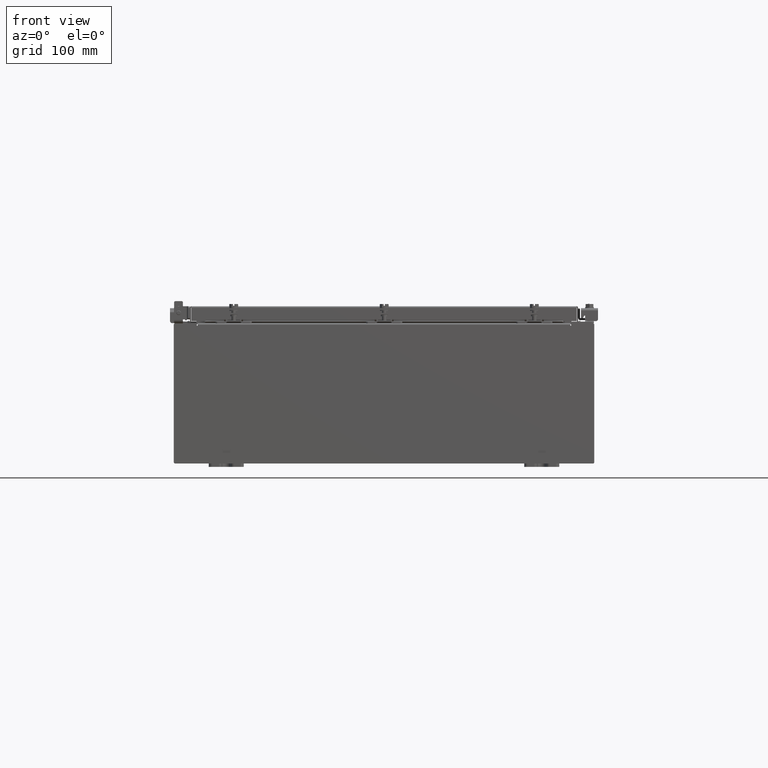
[diagram: clean part render]
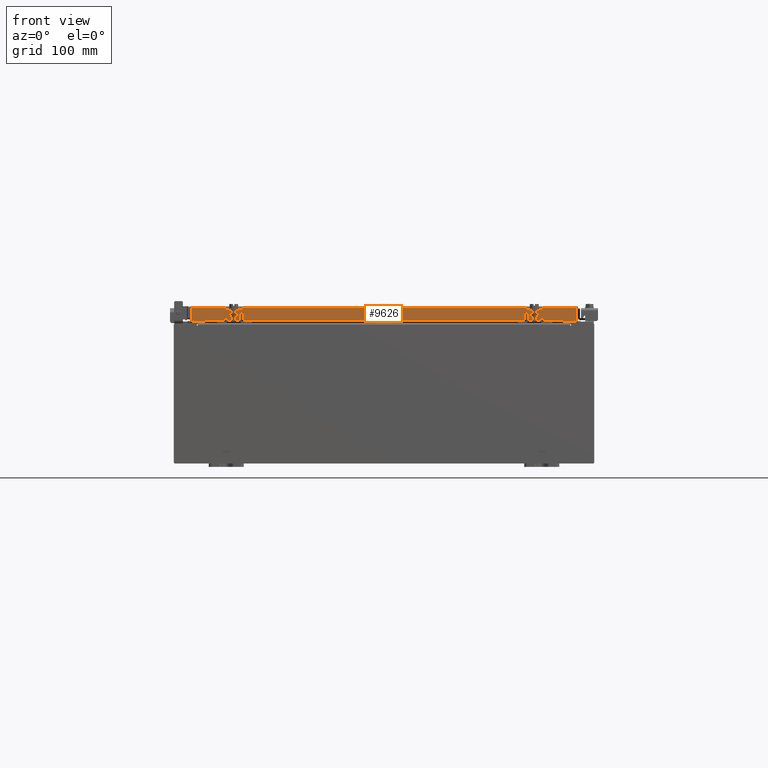
[diagram: same view with one face highlighted and labeled with its STEP entity id]
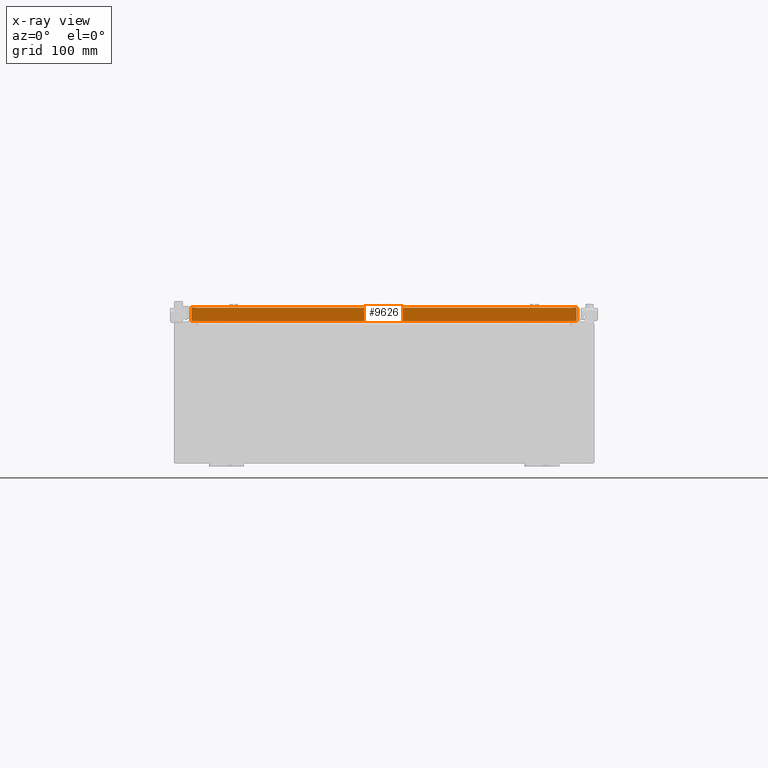
[diagram: x-ray of the same camera — body ghosted, the highlighted face saturated]
A machine part, front view. The second image highlights one B-rep face of the part: STEP entity #9626.
The next image is the same camera in x-ray: the body ghosted, the highlighted face saturated — about 0% of this face is hidden behind the body in this view.
In plain terms, the highlighted planar face has unit normal (0, 1, -0).
Its self-contained STEP definition (entity closure, byte-faithful):
#117 = ORIENTED_EDGE ( 'NONE', *, *, #13546, .F. ) ;
#159 = LINE ( 'NONE', #11895, #9132 ) ;
#832 = AXIS2_PLACEMENT_3D ( 'NONE', #20238, #2414, #14921 ) ;
#987 = EDGE_CURVE ( 'NONE', #21622, #19046, #12654, .T. ) ;
#1003 = ORIENTED_EDGE ( 'NONE', *, *, #15987, .F. ) ;
#1537 = DIRECTION ( 'NONE',  ( -1.000000000000000000, 0.0000000000000000000, 0.0000000000000000000 ) ) ;
#2414 = DIRECTION ( 'NONE',  ( 9.864047639155998000E-017, 1.000000000000000000, -2.818880942772360500E-015 ) ) ;
#2504 = DIRECTION ( 'NONE',  ( 1.000000000000000000, -9.864047639155999200E-017, -9.196021172131615100E-046 ) ) ;
#2868 = DIRECTION ( 'NONE',  ( -1.000000000000000000, 9.864047639156033700E-017, 1.233005954894504400E-016 ) ) ;
#3635 = VERTEX_POINT ( 'NONE', #15183 ) ;
#4193 = CARTESIAN_POINT ( 'NONE',  ( 10.23915786437626900, -14.09399999999999900, -0.8500000000000012000 ) ) ;
#6102 = CARTESIAN_POINT ( 'NONE',  ( -10.98915786437626900, -14.09400000000000100, -0.8499999999999969800 ) ) ;
#7693 = ORIENTED_EDGE ( 'NONE', *, *, #14002, .F. ) ;
#7983 = ORIENTED_EDGE ( 'NONE', *, *, #19866, .F. ) ;
#8457 = VECTOR ( 'NONE', #19027, 39.37007874015748100 ) ;
#8806 = VERTEX_POINT ( 'NONE', #10758 ) ;
#9132 = VECTOR ( 'NONE', #2868, 39.37007874015748100 ) ;
#9626 = ADVANCED_FACE ( 'NONE', ( #10752 ), #13149, .F. ) ;
#10318 = EDGE_CURVE ( 'NONE', #3635, #14034, #13232, .T. ) ;
#10752 = FACE_OUTER_BOUND ( 'NONE', #22645, .T. ) ;
#10758 = CARTESIAN_POINT ( 'NONE',  ( 10.98915786437626900, -14.09400000000000300, -0.8499999999999996400 ) ) ;
#10885 = LINE ( 'NONE', #11434, #15052 ) ;
#10967 = CARTESIAN_POINT ( 'NONE',  ( 10.23915786437626700, -14.09399999999999900, -0.8500000000000012000 ) ) ;
#11357 = VERTEX_POINT ( 'NONE', #20239 ) ;
#11434 = CARTESIAN_POINT ( 'NONE',  ( 11.07799999999999900, -14.09400000000000100, -0.08770000000000224800 ) ) ;
#11895 = CARTESIAN_POINT ( 'NONE',  ( 11.07799999999999800, -14.09400000000000300, -0.8499999999999996400 ) ) ;
#12088 = VECTOR ( 'NONE', #1537, 39.37007874015748100 ) ;
#12273 = ORIENTED_EDGE ( 'NONE', *, *, #987, .F. ) ;
#12654 = LINE ( 'NONE', #4193, #12088 ) ;
#12856 = VECTOR ( 'NONE', #22697, 39.37007874015748100 ) ;
#13149 = PLANE ( 'NONE',  #832 ) ;
#13232 = LINE ( 'NONE', #22557, #8457 ) ;
#13546 = EDGE_CURVE ( 'NONE', #11357, #8806, #17590, .T. ) ;
#14002 = EDGE_CURVE ( 'NONE', #3635, #11357, #10885, .T. ) ;
#14034 = VERTEX_POINT ( 'NONE', #6102 ) ;
#14692 = DIRECTION ( 'NONE',  ( -1.000000000000000000, 9.864047639156033700E-017, 1.233005954894504400E-016 ) ) ;
#14809 = CARTESIAN_POINT ( 'NONE',  ( -10.23915786437626900, -14.09399999999999900, -0.8500000000000012000 ) ) ;
#14921 = DIRECTION ( 'NONE',  ( 0.0000000000000000000, 2.818880942772360500E-015, 1.000000000000000000 ) ) ;
#15052 = VECTOR ( 'NONE', #2504, 39.37007874015748100 ) ;
#15183 = CARTESIAN_POINT ( 'NONE',  ( -10.98915786437626700, -14.09399999999999900, -0.08770000000000224800 ) ) ;
#15987 = EDGE_CURVE ( 'NONE', #8806, #21622, #21594, .T. ) ;
#17297 = CARTESIAN_POINT ( 'NONE',  ( 10.98915786437626900, -14.09400000000000100, -0.07469999999999978000 ) ) ;
#17590 = LINE ( 'NONE', #17297, #12856 ) ;
#19027 = DIRECTION ( 'NONE',  ( 0.0000000000000000000, -2.818880942772360500E-015, -1.000000000000000000 ) ) ;
#19046 = VERTEX_POINT ( 'NONE', #14809 ) ;
#19758 = ORIENTED_EDGE ( 'NONE', *, *, #10318, .T. ) ;
#19866 = EDGE_CURVE ( 'NONE', #19046, #14034, #159, .T. ) ;
#19989 = CARTESIAN_POINT ( 'NONE',  ( 11.07799999999999800, -14.09400000000000300, -0.8499999999999996400 ) ) ;
#20238 = CARTESIAN_POINT ( 'NONE',  ( -1.390238874262646300E-015, -14.09399999999999900, 3.999012166344522900E-014 ) ) ;
#20239 = CARTESIAN_POINT ( 'NONE',  ( 10.98915786437624400, -14.09400000000000100, -0.08770000000000224800 ) ) ;
#21594 = LINE ( 'NONE', #19989, #22149 ) ;
#21622 = VERTEX_POINT ( 'NONE', #10967 ) ;
#22149 = VECTOR ( 'NONE', #14692, 39.37007874015748100 ) ;
#22557 = CARTESIAN_POINT ( 'NONE',  ( -10.98915786437626900, -14.09399999999999900, 3.999012166344522900E-014 ) ) ;
#22645 = EDGE_LOOP ( 'NONE', ( #7693, #19758, #7983, #12273, #1003, #117 ) ) ;
#22697 = DIRECTION ( 'NONE',  ( 0.0000000000000000000, -2.818880942772360500E-015, -1.000000000000000000 ) ) ;